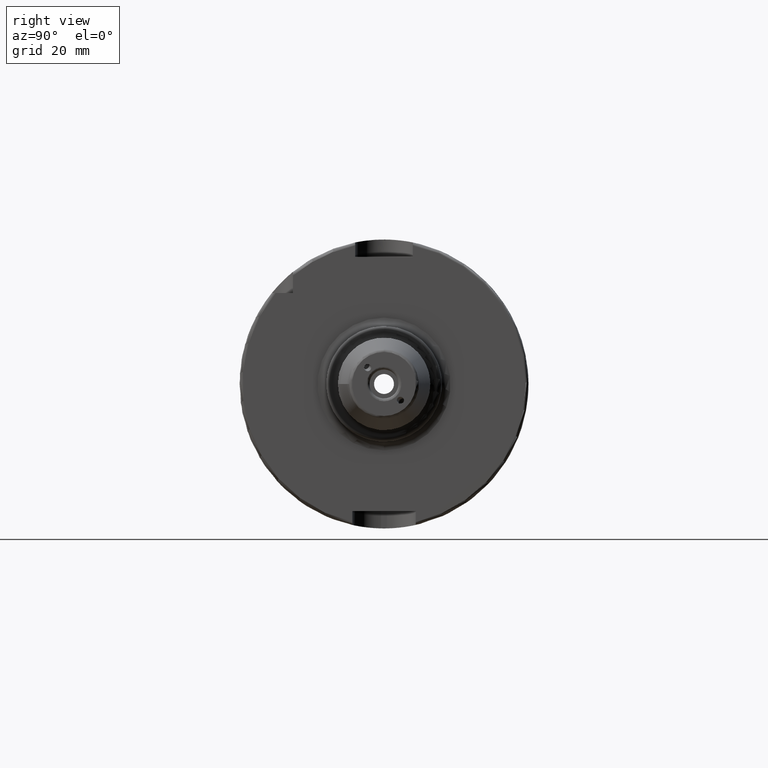
[diagram: clean part render]
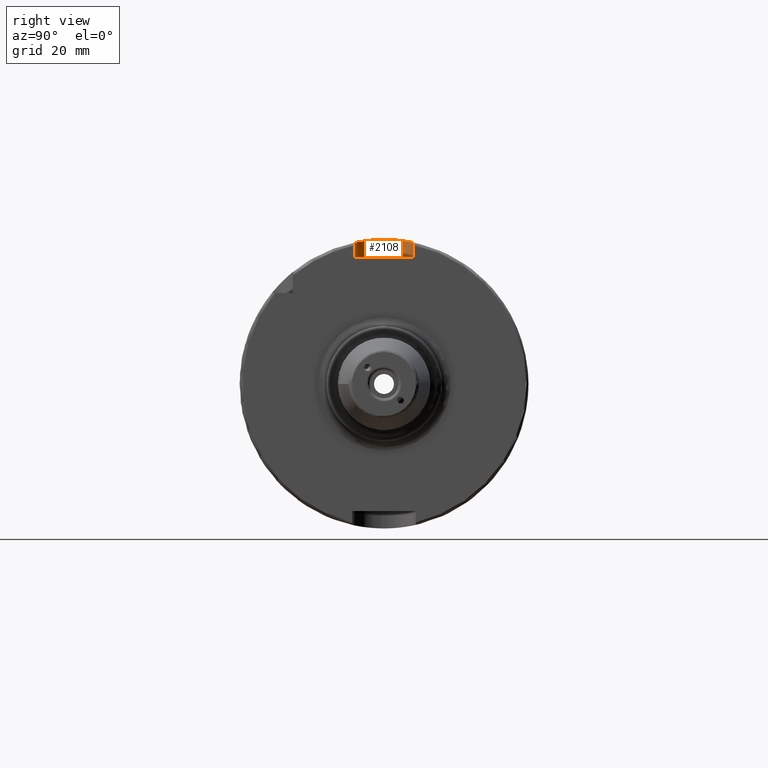
[diagram: same view with one face highlighted and labeled with its STEP entity id]
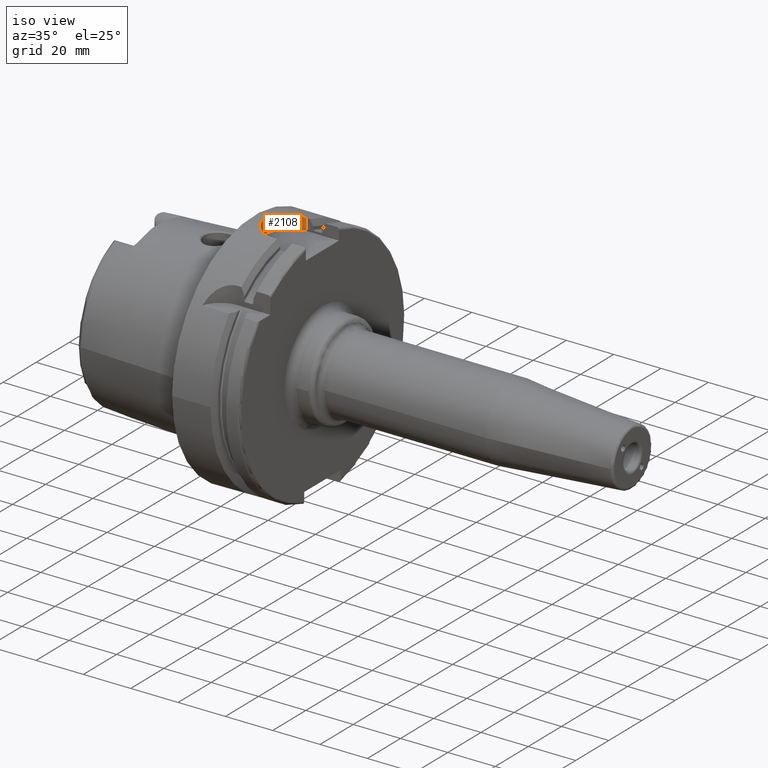
[diagram: same view with one face highlighted and labeled with its STEP entity id]
A machine part, right view. The second image highlights one B-rep face of the part: STEP entity #2108.
A second angle (iso view) of the same face is appended — the face is thin or edge-on in the first view.
In plain terms, the highlighted cylindrical surface (edge-blend (fillet) strip) has radius 10 mm, axis along (0, 0, 1).
Its self-contained STEP definition (entity closure, byte-faithful):
#65=B_SPLINE_CURVE_WITH_KNOTS('',3,(#4129,#4130,#4131,#4132,#4133,#4134,
#4135,#4136,#4137,#4138,#4139,#4140,#4141,#4142,#4143,#4144,#4145,#4146),
 .UNSPECIFIED.,.F.,.F.,(4,2,2,2,2,2,2,2,4),(0.,0.377795255890194,0.755590511780389,
1.13336459804459,1.51113868430879,1.88891277057299,2.26668685683718,2.64448211272738,
3.02227736861757),.UNSPECIFIED.);
#198=CYLINDRICAL_SURFACE('',#2352,10.);
#286=FACE_OUTER_BOUND('',#418,.T.);
#418=EDGE_LOOP('',(#1786,#1787,#1788,#1789));
#557=LINE('',#4437,#665);
#558=LINE('',#4441,#666);
#665=VECTOR('',#2883,10.);
#666=VECTOR('',#2888,10.);
#777=CIRCLE('',#2353,10.);
#958=VERTEX_POINT('',#4126);
#959=VERTEX_POINT('',#4128);
#1005=VERTEX_POINT('',#4435);
#1006=VERTEX_POINT('',#4439);
#1212=EDGE_CURVE('',#958,#959,#65,.T.);
#1288=EDGE_CURVE('',#1005,#958,#557,.T.);
#1289=EDGE_CURVE('',#1006,#1005,#777,.T.);
#1290=EDGE_CURVE('',#1006,#959,#558,.T.);
#1786=ORIENTED_EDGE('',*,*,#1212,.F.);
#1787=ORIENTED_EDGE('',*,*,#1288,.F.);
#1788=ORIENTED_EDGE('',*,*,#1289,.F.);
#1789=ORIENTED_EDGE('',*,*,#1290,.T.);
#2108=ADVANCED_FACE('',(#286),#198,.F.);
#2352=AXIS2_PLACEMENT_3D('',#4438,#2884,#2885);
#2353=AXIS2_PLACEMENT_3D('',#4440,#2886,#2887);
#2883=DIRECTION('',(0.,0.,1.));
#2884=DIRECTION('center_axis',(0.,0.,1.));
#2885=DIRECTION('ref_axis',(0.,1.,0.));
#2886=DIRECTION('center_axis',(0.,0.,1.));
#2887=DIRECTION('ref_axis',(0.,1.,0.));
#2888=DIRECTION('',(0.,0.,1.));
#4126=CARTESIAN_POINT('',(15.,-10.,48.9897948556636));
#4128=CARTESIAN_POINT('',(15.,10.,48.9897948556636));
#4129=CARTESIAN_POINT('Ctrl Pts',(15.,-10.,48.9897948556636));
#4130=CARTESIAN_POINT('Ctrl Pts',(13.740682480366,-10.,48.9897948556636));
#4131=CARTESIAN_POINT('Ctrl Pts',(12.3998222283811,-9.74762796248614,49.0433876618447));
#4132=CARTESIAN_POINT('Ctrl Pts',(9.93707994969945,-8.72605417648382,49.2354150792771));
#4133=CARTESIAN_POINT('Ctrl Pts',(8.81489539818993,-7.95703102192089,49.3709085101933));
#4134=CARTESIAN_POINT('Ctrl Pts',(7.04301862271998,-6.18515424645094,49.6240337638318));
#4135=CARTESIAN_POINT('Ctrl Pts',(6.27395658455242,-5.06294861197626,49.7583347151863));
#4136=CARTESIAN_POINT('Ctrl Pts',(5.25235457764165,-2.60013306081865,49.9476188647081));
#4137=CARTESIAN_POINT('Ctrl Pts',(4.99999999999999,-1.259246954214,50.));
#4138=CARTESIAN_POINT('Ctrl Pts',(4.99999999999999,1.259246954214,50.));
#4139=CARTESIAN_POINT('Ctrl Pts',(5.25235457764165,2.60013306081865,49.9476188647081));
#4140=CARTESIAN_POINT('Ctrl Pts',(6.27395658455242,5.06294861197626,49.7583347151863));
#4141=CARTESIAN_POINT('Ctrl Pts',(7.04301862271998,6.18515424645094,49.6240337638318));
#4142=CARTESIAN_POINT('Ctrl Pts',(8.81489539818993,7.95703102192089,49.3709085101933));
#4143=CARTESIAN_POINT('Ctrl Pts',(9.93707994969945,8.72605417648382,49.2354150792771));
#4144=CARTESIAN_POINT('Ctrl Pts',(12.3998222283811,9.74762796248614,49.0433876618447));
#4145=CARTESIAN_POINT('Ctrl Pts',(13.740682480366,10.,48.9897948556636));
#4146=CARTESIAN_POINT('Ctrl Pts',(15.,10.,48.9897948556636));
#4435=CARTESIAN_POINT('',(15.,-10.,44.));
#4437=CARTESIAN_POINT('',(15.,-10.,44.));
#4438=CARTESIAN_POINT('Origin',(15.,0.,44.));
#4439=CARTESIAN_POINT('',(15.,10.,44.));
#4440=CARTESIAN_POINT('Origin',(15.,0.,44.));
#4441=CARTESIAN_POINT('',(15.,10.,44.));